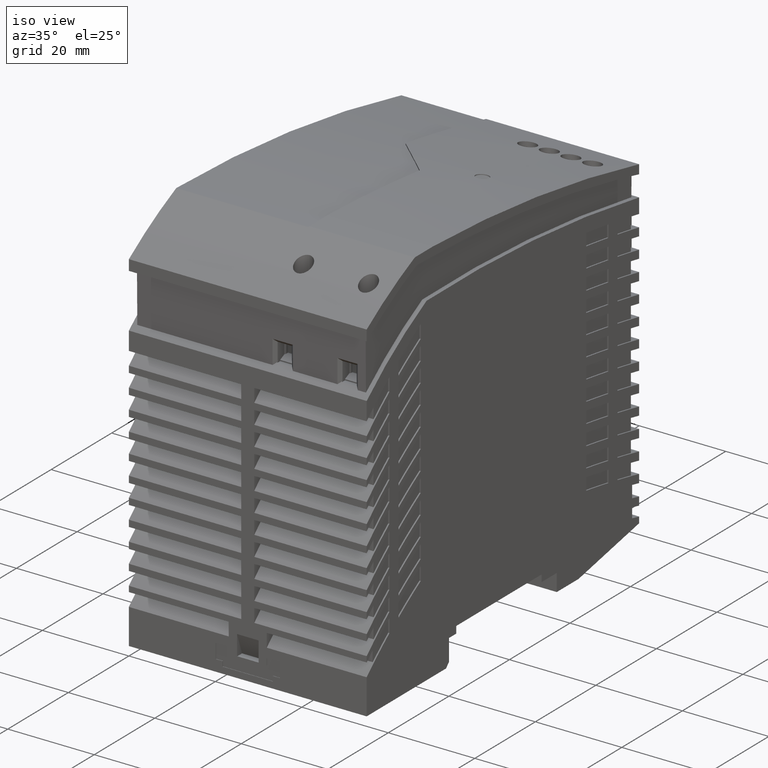
[diagram: clean part render]
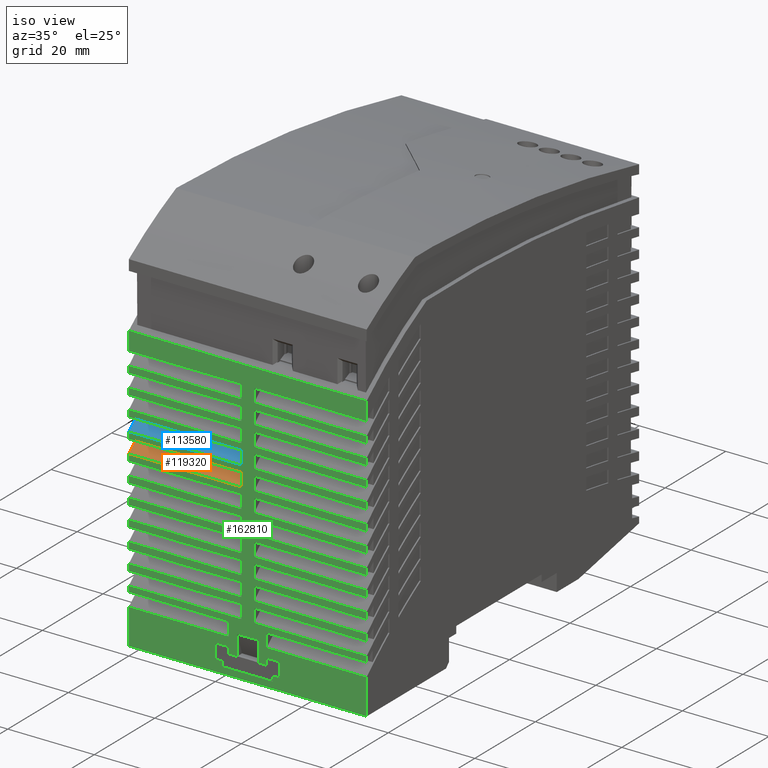
[diagram: same view with three faces highlighted in distinct colors, each labeled with its STEP entity id]
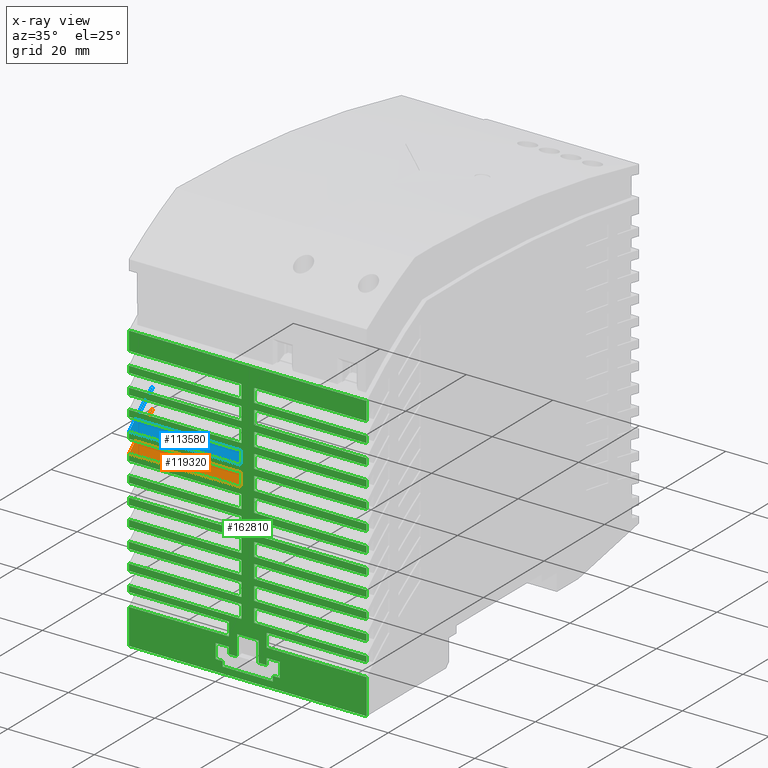
[diagram: x-ray of the same camera — body ghosted, the three highlighted faces saturated]
A machine part, iso view with three faces highlighted in distinct colors.
The next image is the same camera in x-ray (body ghosted, the three faces saturated) — at least one of them is partly hidden behind the body in this view.
Their STEP definitions:

[orange] entity #119320 — the highlighted cylindrical surface (partial cylindrical patch) has radius 111 mm, axis along (1, 0, 0).
#13440=CARTESIAN_POINT('',(30.4869845880642,-41.1590205851657,-54.));
#13450=DIRECTION('',(0.,0.,1.));
#13460=DIRECTION('',(0.,1.,0.));
#13470=AXIS2_PLACEMENT_3D('',#13440,#13450,#13460);
#13480=CIRCLE('',#13470,110.99999999997);
#20270=CARTESIAN_POINT('',(-37.4715236073769,46.6056714261642,-54.));
#20280=VERTEX_POINT('',#20270);
#20310=CARTESIAN_POINT('',(-45.0015236073532,40.2196322079583,-54.));
#20320=VERTEX_POINT('',#20310);
#20330=EDGE_CURVE('',#20280,#20320,#13480,.T.);
#118650=CARTESIAN_POINT('',(-42.301523607367,42.6433246963183,-53.7));
#118660=VERTEX_POINT('',#118650);
#118690=CARTESIAN_POINT('',(30.4869845880642,-41.1590205851657,-53.7));
#118700=DIRECTION('',(0.,0.,1.));
#118710=DIRECTION('',(0.,1.,0.));
#118720=AXIS2_PLACEMENT_3D('',#118690,#118700,#118710);
#118730=CIRCLE('',#118720,110.99999999997);
#118740=CARTESIAN_POINT('',(-37.4715236073769,46.6056714261642,-53.7));
#118750=VERTEX_POINT('',#118740);
#118760=EDGE_CURVE('',#118750,#118660,#118730,.T.);
#118940=CARTESIAN_POINT('',(30.4869845880642,-41.1590205851657,-53.7));
#118950=DIRECTION('',(0.,0.,1.));
#118960=DIRECTION('',(0.,1.,0.));
#118970=AXIS2_PLACEMENT_3D('',#118940,#118950,#118960);
#118980=CYLINDRICAL_SURFACE('',#118970,110.99999999997);
#118990=ORIENTED_EDGE('',*,*,#20330,.T.);
#119000=CARTESIAN_POINT('',(-37.4715236073769,46.6056714261642,-53.7));
#119010=DIRECTION('',(0.,0.,-1.));
#119020=VECTOR('',#119010,1.);
#119030=LINE('',#119000,#119020);
#119040=EDGE_CURVE('',#118750,#20280,#119030,.T.);
#119050=ORIENTED_EDGE('',*,*,#119040,.T.);
#119060=ORIENTED_EDGE('',*,*,#118760,.F.);
#119070=CARTESIAN_POINT('',(-42.301523607367,42.6433246963182,-28.));
#119080=DIRECTION('',(0.,0.,-1.));
#119090=VECTOR('',#119080,1.);
#119100=LINE('',#119070,#119090);
#119110=CARTESIAN_POINT('',(-42.301523607367,42.6433246963183,-28.));
#119120=VERTEX_POINT('',#119110);
#119130=EDGE_CURVE('',#119120,#118660,#119100,.T.);
#119140=ORIENTED_EDGE('',*,*,#119130,.T.);
#119150=CARTESIAN_POINT('',(30.4869845880642,-41.1590205851657,-28.));
#119160=DIRECTION('',(0.,0.,1.));
#119170=DIRECTION('',(0.,1.,0.));
#119180=AXIS2_PLACEMENT_3D('',#119150,#119160,#119170);
#119190=CIRCLE('',#119180,110.99999999997);
#119200=CARTESIAN_POINT('',(-45.0015236073532,40.2196322079583,-28.));
#119210=VERTEX_POINT('',#119200);
#119220=EDGE_CURVE('',#119120,#119210,#119190,.T.);
#119230=ORIENTED_EDGE('',*,*,#119220,.F.);
#119240=CARTESIAN_POINT('',(-45.0015236073532,40.2196322079583,-25.));
#119250=DIRECTION('',(0.,0.,1.));
#119260=VECTOR('',#119250,1.);
#119270=LINE('',#119240,#119260);
#119280=EDGE_CURVE('',#20320,#119210,#119270,.T.);
#119290=ORIENTED_EDGE('',*,*,#119280,.T.);
#119300=EDGE_LOOP('',(#119290,#119230,#119140,#119060,#119050,#118990));
#119310=FACE_OUTER_BOUND('',#119300,.T.);
#119320=ADVANCED_FACE('',(#119310),#118980,.T.);

[blue] entity #113580 — the highlighted cylindrical surface (partial cylindrical patch) has radius 111 mm, axis along (1, 0, 0).
#14160=CARTESIAN_POINT('',(30.4869845880638,-36.5590205851661,-54.));
#14170=DIRECTION('',(0.,0.,1.));
#14180=DIRECTION('',(0.,1.,0.));
#14190=AXIS2_PLACEMENT_3D('',#14160,#14170,#14180);
#14200=CIRCLE('',#14190,110.999999999971);
#20070=CARTESIAN_POINT('',(-37.4715236073769,51.2056714261642,-54.));
#20080=VERTEX_POINT('',#20070);
#20110=CARTESIAN_POINT('',(-45.0015236073532,44.8196322079584,-54.));
#20120=VERTEX_POINT('',#20110);
#20130=EDGE_CURVE('',#20080,#20120,#14200,.T.);
#111870=CARTESIAN_POINT('',(-42.3015236073671,47.2433246963184,-53.7));
#111880=VERTEX_POINT('',#111870);
#111910=CARTESIAN_POINT('',(30.4869845880638,-36.5590205851661,-53.7));
#111920=DIRECTION('',(0.,0.,1.));
#111930=DIRECTION('',(0.,1.,0.));
#111940=AXIS2_PLACEMENT_3D('',#111910,#111920,#111930);
#111950=CIRCLE('',#111940,110.999999999971);
#111960=CARTESIAN_POINT('',(-37.4715236073769,51.2056714261642,-53.7));
#111970=VERTEX_POINT('',#111960);
#111980=EDGE_CURVE('',#111970,#111880,#111950,.T.);
#113070=CARTESIAN_POINT('',(-37.4715236073769,51.2056714261643,-53.7));
#113080=DIRECTION('',(0.,0.,-1.));
#113090=VECTOR('',#113080,1.);
#113100=LINE('',#113070,#113090);
#113110=EDGE_CURVE('',#111970,#20080,#113100,.T.);
#113250=CARTESIAN_POINT('',(30.4869845880638,-36.5590205851661,-53.7));
#113260=DIRECTION('',(0.,0.,1.));
#113270=DIRECTION('',(0.,1.,0.));
#113280=AXIS2_PLACEMENT_3D('',#113250,#113260,#113270);
#113290=CYLINDRICAL_SURFACE('',#113280,110.999999999971);
#113300=ORIENTED_EDGE('',*,*,#20130,.T.);
#113310=ORIENTED_EDGE('',*,*,#113110,.T.);
#113320=ORIENTED_EDGE('',*,*,#111980,.F.);
#113330=CARTESIAN_POINT('',(-42.3015236073671,47.2433246963183,-28.));
#113340=DIRECTION('',(0.,0.,-1.));
#113350=VECTOR('',#113340,1.);
#113360=LINE('',#113330,#113350);
#113370=CARTESIAN_POINT('',(-42.3015236073671,47.2433246963184,-28.));
#113380=VERTEX_POINT('',#113370);
#113390=EDGE_CURVE('',#113380,#111880,#113360,.T.);
#113400=ORIENTED_EDGE('',*,*,#113390,.T.);
#113410=CARTESIAN_POINT('',(30.4869845880638,-36.5590205851661,-28.));
#113420=DIRECTION('',(0.,0.,1.));
#113430=DIRECTION('',(0.,1.,0.));
#113440=AXIS2_PLACEMENT_3D('',#113410,#113420,#113430);
#113450=CIRCLE('',#113440,110.999999999971);
#113460=CARTESIAN_POINT('',(-45.0015236073532,44.8196322079584,-28.));
#113470=VERTEX_POINT('',#113460);
#113480=EDGE_CURVE('',#113380,#113470,#113450,.T.);
#113490=ORIENTED_EDGE('',*,*,#113480,.F.);
#113500=CARTESIAN_POINT('',(-45.0015236073532,44.8196322079584,-25.));
#113510=DIRECTION('',(0.,0.,1.));
#113520=VECTOR('',#113510,1.);
#113530=LINE('',#113500,#113520);
#113540=EDGE_CURVE('',#20120,#113470,#113530,.T.);
#113550=ORIENTED_EDGE('',*,*,#113540,.T.);
#113560=EDGE_LOOP('',(#113550,#113490,#113400,#113320,#113310,#113300));
#113570=FACE_OUTER_BOUND('',#113560,.T.);
#113580=ADVANCED_FACE('',(#113570),#113290,.T.);

[green] entity #162810 — the highlighted planar face has unit normal (0, -1, 0).
#120=CARTESIAN_POINT('',(-45.0015236073532,1.52907227621138,-32.3));
#130=VERTEX_POINT('',#120);
#280=CARTESIAN_POINT('',(-45.0015236073532,1.52907227621138,-20.7));
#290=VERTEX_POINT('',#280);
#320=CARTESIAN_POINT('',(-45.0015236073671,1.52907227621138,0.));
#330=DIRECTION('',(0.,0.,1.));
#340=VECTOR('',#330,1.);
#350=LINE('',#320,#340);
#360=EDGE_CURVE('',#130,#290,#350,.T.);
#2010=CARTESIAN_POINT('',(-45.0015236073532,2.67907227621139,-19.1));
#2020=VERTEX_POINT('',#2010);
#2170=CARTESIAN_POINT('',(-45.0015236073532,6.02907227621138,-19.1));
#2180=VERTEX_POINT('',#2170);
#2210=CARTESIAN_POINT('',(-45.0015236073671,0.,-19.1));
#2220=DIRECTION('',(0.,1.,0.));
#2230=VECTOR('',#2220,1.);
#2240=LINE('',#2210,#2230);
#2250=EDGE_CURVE('',#2020,#2180,#2240,.T.);
#2470=CARTESIAN_POINT('',(-45.0015236073532,15.7196322079491,-25.));
#2480=VERTEX_POINT('',#2470);
#2660=CARTESIAN_POINT('',(-45.0015236073532,12.6196322079583,-25.));
#2670=VERTEX_POINT('',#2660);
#2700=CARTESIAN_POINT('',(-45.0015236073532,0.,-25.));
#2710=DIRECTION('',(0.,-1.,0.));
#2720=VECTOR('',#2710,1.);
#2730=LINE('',#2700,#2720);
#2740=EDGE_CURVE('',#2480,#2670,#2730,.T.);
#3440=CARTESIAN_POINT('',(-45.0015236073532,4.52907227621135,-30.9));
#3450=VERTEX_POINT('',#3440);
#3600=CARTESIAN_POINT('',(-45.0015236073532,6.02907227621138,-30.9));
#3610=VERTEX_POINT('',#3600);
#3640=CARTESIAN_POINT('',(-45.0015236073671,0.,-30.9));
#3650=DIRECTION('',(0.,1.,0.));
#3660=VECTOR('',#3650,1.);
#3670=LINE('',#3640,#3660);
#3680=EDGE_CURVE('',#3450,#3610,#3670,.T.);
#4940=CARTESIAN_POINT('',(-45.0015236073671,0.029072276211352,0.));
#4950=DIRECTION('',(0.,0.,1.));
#4960=VECTOR('',#4950,1.);
#4970=LINE('',#4940,#4960);
#4980=CARTESIAN_POINT('',(-45.0015236073532,0.029072276211352,-54.));
#4990=VERTEX_POINT('',#4980);
#5000=CARTESIAN_POINT('',(-45.0015236073532,0.029072276211352,1.));
#5010=VERTEX_POINT('',#5000);
#5020=EDGE_CURVE('',#4990,#5010,#4970,.T.);
#7470=CARTESIAN_POINT('',(-45.0015236073532,2.67907227621139,-20.7));
#7480=VERTEX_POINT('',#7470);
#7600=CARTESIAN_POINT('',(-45.0015236073671,2.67907227621139,0.));
#7610=DIRECTION('',(0.,0.,1.));
#7620=VECTOR('',#7610,1.);
#7630=LINE('',#7600,#7620);
#7640=EDGE_CURVE('',#7480,#2020,#7630,.T.);
#7870=CARTESIAN_POINT('',(-45.0015236073532,4.52907227621135,-24.));
#7880=VERTEX_POINT('',#7870);
#7910=CARTESIAN_POINT('',(-45.0015236073671,4.52907227621135,0.));
#7920=DIRECTION('',(0.,0.,1.));
#7930=VECTOR('',#7920,1.);
#7940=LINE('',#7910,#7930);
#7950=CARTESIAN_POINT('',(-45.0015236073532,4.52907227621135,-22.1));
#7960=VERTEX_POINT('',#7950);
#7970=EDGE_CURVE('',#7880,#7960,#7940,.T.);
#19270=CARTESIAN_POINT('',(-45.0015236073532,65.9624132898226,-54.));
#19280=VERTEX_POINT('',#19270);
#19310=CARTESIAN_POINT('',(-45.0015236073671,0.029072276211352,-54.));
#19320=DIRECTION('',(0.,-1.,0.));
#19330=VECTOR('',#19320,1.);
#19340=LINE('',#19310,#19330);
#19350=CARTESIAN_POINT('',(-45.0015236073532,61.7196322079584,-54.));
#19360=VERTEX_POINT('',#19350);
#19370=EDGE_CURVE('',#19280,#19360,#19340,.T.);
#19510=CARTESIAN_POINT('',(-45.0015236073532,58.6196322079584,-54.));
#19520=VERTEX_POINT('',#19510);
#19550=CARTESIAN_POINT('',(-45.0015236073532,57.1196322079585,-54.));
#19560=VERTEX_POINT('',#19550);
#19570=EDGE_CURVE('',#19520,#19560,#19340,.T.);
#19710=CARTESIAN_POINT('',(-45.0015236073532,54.0196322079584,-54.));
#19720=VERTEX_POINT('',#19710);
#19750=CARTESIAN_POINT('',(-45.0015236073532,52.5196322079585,-54.));
#19760=VERTEX_POINT('',#19750);
#19770=EDGE_CURVE('',#19720,#19760,#19340,.T.);
#19910=CARTESIAN_POINT('',(-45.0015236073532,49.4196322079584,-54.));
#19920=VERTEX_POINT('',#19910);
#19950=CARTESIAN_POINT('',(-45.0015236073532,47.9196322079584,-54.));
#19960=VERTEX_POINT('',#19950);
#19970=EDGE_CURVE('',#19920,#19960,#19340,.T.);
#20110=CARTESIAN_POINT('',(-45.0015236073532,44.8196322079584,-54.));
#20120=VERTEX_POINT('',#20110);
#20150=CARTESIAN_POINT('',(-45.0015236073532,43.3196322079583,-54.));
#20160=VERTEX_POINT('',#20150);
#20170=EDGE_CURVE('',#20120,#20160,#19340,.T.);
#20310=CARTESIAN_POINT('',(-45.0015236073532,40.2196322079583,-54.));
#20320=VERTEX_POINT('',#20310);
#20350=CARTESIAN_POINT('',(-45.0015236073532,38.7196322079491,-54.));
#20360=VERTEX_POINT('',#20350);
#20370=EDGE_CURVE('',#20320,#20360,#19340,.T.);
#20510=CARTESIAN_POINT('',(-45.0015236073532,35.6196322079584,-54.));
#20520=VERTEX_POINT('',#20510);
#20550=CARTESIAN_POINT('',(-45.0015236073532,34.1196322079584,-54.));
#20560=VERTEX_POINT('',#20550);
#20570=EDGE_CURVE('',#20520,#20560,#19340,.T.);
#20710=CARTESIAN_POINT('',(-45.0015236073532,31.0196322079585,-54.));
#20720=VERTEX_POINT('',#20710);
#20750=CARTESIAN_POINT('',(-45.0015236073532,29.5196322079585,-54.));
#20760=VERTEX_POINT('',#20750);
#20770=EDGE_CURVE('',#20720,#20760,#19340,.T.);
#20910=CARTESIAN_POINT('',(-45.0015236073532,26.4196322079584,-54.));
#20920=VERTEX_POINT('',#20910);
#20950=CARTESIAN_POINT('',(-45.0015236073532,24.9196322079585,-54.));
#20960=VERTEX_POINT('',#20950);
#20970=EDGE_CURVE('',#20920,#20960,#19340,.T.);
#21110=CARTESIAN_POINT('',(-45.0015236073532,21.8196322079584,-54.));
#21120=VERTEX_POINT('',#21110);
#21150=CARTESIAN_POINT('',(-45.0015236073532,20.3196322079585,-54.));
#21160=VERTEX_POINT('',#21150);
#21170=EDGE_CURVE('',#21120,#21160,#19340,.T.);
#21310=CARTESIAN_POINT('',(-45.0015236073532,17.2196322079584,-54.));
#21320=VERTEX_POINT('',#21310);
#21350=CARTESIAN_POINT('',(-45.0015236073532,15.7196322079492,-54.));
#21360=VERTEX_POINT('',#21350);
#21370=EDGE_CURVE('',#21320,#21360,#19340,.T.);
#21510=CARTESIAN_POINT('',(-45.0015236073532,12.6196322079583,-54.));
#21520=VERTEX_POINT('',#21510);
#21550=CARTESIAN_POINT('',(-45.0015236073532,11.3047001103734,-54.));
#21560=VERTEX_POINT('',#21550);
#21570=EDGE_CURVE('',#21520,#21560,#19340,.T.);
#21810=CARTESIAN_POINT('',(-45.0015236073672,8.20470011036055,-54.));
#21820=VERTEX_POINT('',#21810);
#21850=EDGE_CURVE('',#21820,#4990,#19340,.T.);
#28910=CARTESIAN_POINT('',(-45.0015236073532,9.22453163121141,-24.));
#28920=VERTEX_POINT('',#28910);
#28950=CARTESIAN_POINT('',(-45.0015236073671,0.,-24.));
#28960=DIRECTION('',(0.,1.,0.));
#28970=VECTOR('',#28960,1.);
#28980=LINE('',#28950,#28970);
#28990=EDGE_CURVE('',#7880,#28920,#28980,.T.);
#29740=CARTESIAN_POINT('',(-45.0015236073532,9.22453163117316,-29.));
#29750=VERTEX_POINT('',#29740);
#29780=CARTESIAN_POINT('',(-45.0015236073671,9.22453163121141,0.));
#29790=DIRECTION('',(0.,0.,1.));
#29800=VECTOR('',#29790,1.);
#29810=LINE('',#29780,#29800);
#29820=EDGE_CURVE('',#29750,#28920,#29810,.T.);
#30360=CARTESIAN_POINT('',(-45.0015236073532,2.67907227621139,-33.9));
#30370=VERTEX_POINT('',#30360);
#30520=CARTESIAN_POINT('',(-45.0015236073532,2.67907227621139,-32.3));
#30530=VERTEX_POINT('',#30520);
#30560=CARTESIAN_POINT('',(-45.0015236073671,2.67907227621139,0.));
#30570=DIRECTION('',(0.,0.,1.));
#30580=VECTOR('',#30570,1.);
#30590=LINE('',#30560,#30580);
#30600=EDGE_CURVE('',#30370,#30530,#30590,.T.);
#30770=CARTESIAN_POINT('',(-45.0015236073532,4.52907227621135,-29.));
#30780=VERTEX_POINT('',#30770);
#30810=CARTESIAN_POINT('',(-45.0015236073671,0.,-29.));
#30820=DIRECTION('',(0.,1.,0.));
#30830=VECTOR('',#30820,1.);
#30840=LINE('',#30810,#30830);
#30850=EDGE_CURVE('',#30780,#29750,#30840,.T.);
#40430=CARTESIAN_POINT('',(-45.0015236073532,65.9624132898226,1.));
#40440=VERTEX_POINT('',#40430);
#45460=CARTESIAN_POINT('',(-45.0015236073671,0.,1.));
#45470=DIRECTION('',(0.,1.,0.));
#45480=VECTOR('',#45470,1.);
#45490=LINE('',#45460,#45480);
#45500=CARTESIAN_POINT('',(-45.0015236073671,8.20470011037343,1.));
#45510=VERTEX_POINT('',#45500);
#45520=EDGE_CURVE('',#5010,#45510,#45490,.T.);
#45760=CARTESIAN_POINT('',(-45.0015236073672,11.3047001103647,1.));
#45770=VERTEX_POINT('',#45760);
#45800=CARTESIAN_POINT('',(-45.0015236073532,12.6196322079583,1.));
#45810=VERTEX_POINT('',#45800);
#45820=EDGE_CURVE('',#45770,#45810,#45490,.T.);
#46060=CARTESIAN_POINT('',(-45.0015236073532,15.7196322079491,1.));
#46070=VERTEX_POINT('',#46060);
#46100=CARTESIAN_POINT('',(-45.0015236073532,17.2196322079585,1.));
#46110=VERTEX_POINT('',#46100);
#46120=EDGE_CURVE('',#46070,#46110,#45490,.T.);
#46360=CARTESIAN_POINT('',(-45.0015236073532,20.3196322079585,1.));
#46370=VERTEX_POINT('',#46360);
#46400=CARTESIAN_POINT('',(-45.0015236073532,21.8196322079584,1.));
#46410=VERTEX_POINT('',#46400);
#46420=EDGE_CURVE('',#46370,#46410,#45490,.T.);
#46660=CARTESIAN_POINT('',(-45.0015236073532,24.9196322079585,1.));
#46670=VERTEX_POINT('',#46660);
#46700=CARTESIAN_POINT('',(-45.0015236073532,26.4196322079584,1.));
#46710=VERTEX_POINT('',#46700);
#46720=EDGE_CURVE('',#46670,#46710,#45490,.T.);
#46960=CARTESIAN_POINT('',(-45.0015236073532,29.5196322079585,1.));
#46970=VERTEX_POINT('',#46960);
#47000=CARTESIAN_POINT('',(-45.0015236073532,31.0196322079584,1.));
#47010=VERTEX_POINT('',#47000);
#47020=EDGE_CURVE('',#46970,#47010,#45490,.T.);
#47260=CARTESIAN_POINT('',(-45.0015236073532,34.1196322079584,1.));
#47270=VERTEX_POINT('',#47260);
#47300=CARTESIAN_POINT('',(-45.0015236073532,35.6196322079584,1.));
#47310=VERTEX_POINT('',#47300);
#47320=EDGE_CURVE('',#47270,#47310,#45490,.T.);
#47560=CARTESIAN_POINT('',(-45.0015236073532,38.7196322079491,1.));
#47570=VERTEX_POINT('',#47560);
#47600=CARTESIAN_POINT('',(-45.0015236073532,40.2196322079583,1.));
#47610=VERTEX_POINT('',#47600);
#47620=EDGE_CURVE('',#47570,#47610,#45490,.T.);
#47860=CARTESIAN_POINT('',(-45.0015236073532,43.3196322079584,1.));
#47870=VERTEX_POINT('',#47860);
#47900=CARTESIAN_POINT('',(-45.0015236073532,44.8196322079584,1.));
#47910=VERTEX_POINT('',#47900);
#47920=EDGE_CURVE('',#47870,#47910,#45490,.T.);
#48160=CARTESIAN_POINT('',(-45.0015236073532,47.9196322079455,1.));
#48170=VERTEX_POINT('',#48160);
#48200=CARTESIAN_POINT('',(-45.0015236073532,49.4196322079585,1.));
#48210=VERTEX_POINT('',#48200);
#48220=EDGE_CURVE('',#48170,#48210,#45490,.T.);
#48460=CARTESIAN_POINT('',(-45.0015236073532,52.5196322079585,1.));
#48470=VERTEX_POINT('',#48460);
#48500=CARTESIAN_POINT('',(-45.0015236073532,54.0196322079455,1.));
#48510=VERTEX_POINT('',#48500);
#48520=EDGE_CURVE('',#48470,#48510,#45490,.T.);
#48760=CARTESIAN_POINT('',(-45.0015236073532,57.1196322079585,1.));
#48770=VERTEX_POINT('',#48760);
#48800=CARTESIAN_POINT('',(-45.0015236073532,58.6196322079583,1.));
#48810=VERTEX_POINT('',#48800);
#48820=EDGE_CURVE('',#48770,#48810,#45490,.T.);
#49060=CARTESIAN_POINT('',(-45.0015236073532,61.7196322079586,1.));
#49070=VERTEX_POINT('',#49060);
#49100=EDGE_CURVE('',#49070,#40440,#45490,.T.);
#49770=CARTESIAN_POINT('',(-45.0015236073671,0.,-20.7));
#49780=DIRECTION('',(0.,1.,0.));
#49790=VECTOR('',#49780,1.);
#49800=LINE('',#49770,#49790);
#49810=EDGE_CURVE('',#290,#7480,#49800,.T.);
#51810=CARTESIAN_POINT('',(-45.0015236073532,6.02907227621138,-33.9));
#51820=VERTEX_POINT('',#51810);
#51850=CARTESIAN_POINT('',(-45.0015236073671,6.02907227621138,0.));
#51860=DIRECTION('',(0.,0.,-1.));
#51870=VECTOR('',#51860,1.);
#51880=LINE('',#51850,#51870);
#51890=EDGE_CURVE('',#3610,#51820,#51880,.T.);
#52090=CARTESIAN_POINT('',(-45.0015236073671,0.,-32.3));
#52100=DIRECTION('',(0.,-1.,0.));
#52110=VECTOR('',#52100,1.);
#52120=LINE('',#52090,#52110);
#52130=EDGE_CURVE('',#30530,#130,#52120,.T.);
#52360=CARTESIAN_POINT('',(-45.0015236073532,6.02907227621138,-22.1));
#52370=VERTEX_POINT('',#52360);
#52400=CARTESIAN_POINT('',(-45.0015236073671,6.02907227621138,0.));
#52410=DIRECTION('',(0.,0.,-1.));
#52420=VECTOR('',#52410,1.);
#52430=LINE('',#52400,#52420);
#52440=EDGE_CURVE('',#2180,#52370,#52430,.T.);
#53120=CARTESIAN_POINT('',(-45.0015236073671,0.,-33.9));
#53130=DIRECTION('',(0.,-1.,0.));
#53140=VECTOR('',#53130,1.);
#53150=LINE('',#53120,#53140);
#53160=EDGE_CURVE('',#51820,#30370,#53150,.T.);
#53730=CARTESIAN_POINT('',(-45.0015236073671,4.52907227621135,0.));
#53740=DIRECTION('',(0.,0.,1.));
#53750=VECTOR('',#53740,1.);
#53760=LINE('',#53730,#53750);
#53770=EDGE_CURVE('',#3450,#30780,#53760,.T.);
#53980=CARTESIAN_POINT('',(-45.0015236073671,0.,-22.1));
#53990=DIRECTION('',(0.,-1.,0.));
#54000=VECTOR('',#53990,1.);
#54010=LINE('',#53980,#54000);
#54020=EDGE_CURVE('',#52370,#7960,#54010,.T.);
#55530=CARTESIAN_POINT('',(-45.0015236073532,65.9624132898226,-54.));
#55540=DIRECTION('',(0.,0.,1.));
#55550=VECTOR('',#55540,1.);
#55560=LINE('',#55530,#55550);
#55570=EDGE_CURVE('',#19280,#40440,#55560,.T.);
#108670=CARTESIAN_POINT('',(-45.0015236073532,52.5196322079585,-25.));
#108680=DIRECTION('',(0.,0.,-1.));
#108690=VECTOR('',#108680,1.);
#108700=LINE('',#108670,#108690);
#108710=CARTESIAN_POINT('',(-45.0015236073532,52.5196322079585,-28.));
#108720=VERTEX_POINT('',#108710);
#108730=EDGE_CURVE('',#108720,#19760,#108700,.T.);
#109530=CARTESIAN_POINT('',(-45.0015236073532,49.4196322079584,-28.));
#109540=VERTEX_POINT('',#109530);
#109570=CARTESIAN_POINT('',(-45.0015236073532,49.4196322079585,-25.));
#109580=DIRECTION('',(0.,0.,1.));
#109590=VECTOR('',#109580,1.);
#109600=LINE('',#109570,#109590);
#109610=EDGE_CURVE('',#19920,#109540,#109600,.T.);
#112600=CARTESIAN_POINT('',(-45.0015236073532,47.9196322079585,-25.));
#112610=DIRECTION('',(0.,0.,-1.));
#112620=VECTOR('',#112610,1.);
#112630=LINE('',#112600,#112620);
#112640=CARTESIAN_POINT('',(-45.0015236073532,47.9196322079585,-28.));
#112650=VERTEX_POINT('',#112640);
#112660=EDGE_CURVE('',#112650,#19960,#112630,.T.);
#113460=CARTESIAN_POINT('',(-45.0015236073532,44.8196322079584,-28.));
#113470=VERTEX_POINT('',#113460);
#113500=CARTESIAN_POINT('',(-45.0015236073532,44.8196322079584,-25.));
#113510=DIRECTION('',(0.,0.,1.));
#113520=VECTOR('',#113510,1.);
#113530=LINE('',#113500,#113520);
#113540=EDGE_CURVE('',#20120,#113470,#113530,.T.);
#116100=CARTESIAN_POINT('',(-45.0015236073532,35.6196322079584,-28.));
#116110=VERTEX_POINT('',#116100);
#116140=CARTESIAN_POINT('',(-45.0015236073532,35.6196322079584,-25.));
#116150=DIRECTION('',(0.,0.,1.));
#116160=VECTOR('',#116150,1.);
#116170=LINE('',#116140,#116160);
#116180=EDGE_CURVE('',#20520,#116110,#116170,.T.);
#116640=CARTESIAN_POINT('',(-45.0015236073532,38.7196322079491,-25.));
#116650=DIRECTION('',(0.,0.,-1.));
#116660=VECTOR('',#116650,1.);
#116670=LINE('',#116640,#116660);
#116680=CARTESIAN_POINT('',(-45.0015236073532,38.7196322079491,-28.));
#116690=VERTEX_POINT('',#116680);
#116700=EDGE_CURVE('',#116690,#20360,#116670,.T.);
#119200=CARTESIAN_POINT('',(-45.0015236073532,40.2196322079583,-28.));
#119210=VERTEX_POINT('',#119200);
#119240=CARTESIAN_POINT('',(-45.0015236073532,40.2196322079583,-25.));
#119250=DIRECTION('',(0.,0.,1.));
#119260=VECTOR('',#119250,1.);
#119270=LINE('',#119240,#119260);
#119280=EDGE_CURVE('',#20320,#119210,#119270,.T.);
#119840=CARTESIAN_POINT('',(-45.0015236073532,43.3196322079584,-25.));
#119850=DIRECTION('',(0.,0.,-1.));
#119860=VECTOR('',#119850,1.);
#119870=LINE('',#119840,#119860);
#119880=CARTESIAN_POINT('',(-45.0015236073532,43.3196322079583,-28.));
#119890=VERTEX_POINT('',#119880);
#119900=EDGE_CURVE('',#119890,#20160,#119870,.T.);
#122880=CARTESIAN_POINT('',(-45.0015236073532,31.0196322079584,-28.));
#122890=VERTEX_POINT('',#122880);
#122920=CARTESIAN_POINT('',(-45.0015236073532,31.0196322079584,-25.));
#122930=DIRECTION('',(0.,0.,1.));
#122940=VECTOR('',#122930,1.);
#122950=LINE('',#122920,#122940);
#122960=EDGE_CURVE('',#20720,#122890,#122950,.T.);
#123420=CARTESIAN_POINT('',(-45.0015236073532,34.1196322079584,-25.));
#123430=DIRECTION('',(0.,0.,-1.));
#123440=VECTOR('',#123430,1.);
#123450=LINE('',#123420,#123440);
#123460=CARTESIAN_POINT('',(-45.0015236073532,34.1196322079584,-28.));
#123470=VERTEX_POINT('',#123460);
#123480=EDGE_CURVE('',#123470,#20560,#123450,.T.);
#125980=CARTESIAN_POINT('',(-45.0015236073532,12.6196322079583,-28.));
#125990=VERTEX_POINT('',#125980);
#126020=CARTESIAN_POINT('',(-45.0015236073532,12.6196322079583,-25.));
#126030=DIRECTION('',(0.,0.,1.));
#126040=VECTOR('',#126030,1.);
#126050=LINE('',#126020,#126040);
#126060=EDGE_CURVE('',#21520,#125990,#126050,.T.);
#126620=CARTESIAN_POINT('',(-45.0015236073532,15.7196322079491,-25.));
#126630=DIRECTION('',(0.,0.,-1.));
#126640=VECTOR('',#126630,1.);
#126650=LINE('',#126620,#126640);
#126660=CARTESIAN_POINT('',(-45.0015236073532,15.7196322079492,-28.));
#126670=VERTEX_POINT('',#126660);
#126680=EDGE_CURVE('',#126670,#21360,#126650,.T.);
#129210=CARTESIAN_POINT('',(-45.0015236073532,57.1196322079585,-25.));
#129220=DIRECTION('',(0.,0.,-1.));
#129230=VECTOR('',#129220,1.);
#129240=LINE('',#129210,#129230);
#129250=CARTESIAN_POINT('',(-45.0015236073532,57.1196322079585,-28.));
#129260=VERTEX_POINT('',#129250);
#129270=EDGE_CURVE('',#129260,#19560,#129240,.T.);
#130070=CARTESIAN_POINT('',(-45.0015236073532,54.0196322079584,-28.));
#130080=VERTEX_POINT('',#130070);
#130110=CARTESIAN_POINT('',(-45.0015236073532,54.0196322079584,-25.));
#130120=DIRECTION('',(0.,0.,1.));
#130130=VECTOR('',#130120,1.);
#130140=LINE('',#130110,#130130);
#130150=EDGE_CURVE('',#19720,#130080,#130140,.T.);
#134400=CARTESIAN_POINT('',(-45.0015236073532,26.4196322079584,-28.));
#134410=VERTEX_POINT('',#134400);
#134440=CARTESIAN_POINT('',(-45.0015236073532,26.4196322079584,-25.));
#134450=DIRECTION('',(0.,0.,1.));
#134460=VECTOR('',#134450,1.);
#134470=LINE('',#134440,#134460);
#134480=EDGE_CURVE('',#20920,#134410,#134470,.T.);
#134840=CARTESIAN_POINT('',(-45.0015236073532,29.5196322079585,-25.));
#134850=DIRECTION('',(0.,0.,-1.));
#134860=VECTOR('',#134850,1.);
#134870=LINE('',#134840,#134860);
#134880=CARTESIAN_POINT('',(-45.0015236073532,29.5196322079585,-28.));
#134890=VERTEX_POINT('',#134880);
#134900=EDGE_CURVE('',#134890,#20760,#134870,.T.);
#137640=CARTESIAN_POINT('',(-45.0015236073532,17.2196322079585,-28.));
#137650=VERTEX_POINT('',#137640);
#137680=CARTESIAN_POINT('',(-45.0015236073532,17.2196322079585,-25.));
#137690=DIRECTION('',(0.,0.,1.));
#137700=VECTOR('',#137690,1.);
#137710=LINE('',#137680,#137700);
#137720=EDGE_CURVE('',#21320,#137650,#137710,.T.);
#138130=CARTESIAN_POINT('',(-45.0015236073532,20.3196322079585,-25.));
#138140=DIRECTION('',(0.,0.,-1.));
#138150=VECTOR('',#138140,1.);
#138160=LINE('',#138130,#138150);
#138170=CARTESIAN_POINT('',(-45.0015236073532,20.3196322079585,-28.));
#138180=VERTEX_POINT('',#138170);
#138190=EDGE_CURVE('',#138180,#21160,#138160,.T.);
#140930=CARTESIAN_POINT('',(-45.0015236073532,24.9196322079585,-25.));
#140940=DIRECTION('',(0.,0.,-1.));
#140950=VECTOR('',#140940,1.);
#140960=LINE('',#140930,#140950);
#140970=CARTESIAN_POINT('',(-45.0015236073532,24.9196322079585,-28.));
#140980=VERTEX_POINT('',#140970);
#140990=EDGE_CURVE('',#140980,#20960,#140960,.T.);
#141790=CARTESIAN_POINT('',(-45.0015236073532,21.8196322079584,-28.));
#141800=VERTEX_POINT('',#141790);
#141830=CARTESIAN_POINT('',(-45.0015236073532,21.8196322079584,-25.));
#141840=DIRECTION('',(0.,0.,1.));
#141850=VECTOR('',#141840,1.);
#141860=LINE('',#141830,#141850);
#141870=EDGE_CURVE('',#21120,#141800,#141860,.T.);
#142720=CARTESIAN_POINT('',(-45.0015236073532,61.7196322079586,-25.));
#142730=DIRECTION('',(0.,0.,-1.));
#142740=VECTOR('',#142730,1.);
#142750=LINE('',#142720,#142740);
#142760=CARTESIAN_POINT('',(-45.0015236073532,61.7196322079586,-28.));
#142770=VERTEX_POINT('',#142760);
#142780=EDGE_CURVE('',#142770,#19360,#142750,.T.);
#143580=CARTESIAN_POINT('',(-45.0015236073532,58.6196322079583,-28.));
#143590=VERTEX_POINT('',#143580);
#143620=CARTESIAN_POINT('',(-45.0015236073532,58.6196322079583,-25.));
#143630=DIRECTION('',(0.,0.,1.));
#143640=VECTOR('',#143630,1.);
#143650=LINE('',#143620,#143640);
#143660=EDGE_CURVE('',#19520,#143590,#143650,.T.);
#145320=CARTESIAN_POINT('',(-45.0015236073532,0.,-28.));
#145330=DIRECTION('',(0.,-1.,0.));
#145340=VECTOR('',#145330,1.);
#145350=LINE('',#145320,#145340);
#145360=EDGE_CURVE('',#112650,#113470,#145350,.T.);
#145800=CARTESIAN_POINT('',(-45.0015236073532,0.,-28.));
#145810=DIRECTION('',(0.,1.,0.));
#145820=VECTOR('',#145810,1.);
#145830=LINE('',#145800,#145820);
#145840=EDGE_CURVE('',#130080,#129260,#145830,.T.);
#146090=CARTESIAN_POINT('',(-45.0015236073532,0.,-28.));
#146100=DIRECTION('',(0.,1.,0.));
#146110=VECTOR('',#146100,1.);
#146120=LINE('',#146090,#146110);
#146130=EDGE_CURVE('',#143590,#142770,#146120,.T.);
#146380=CARTESIAN_POINT('',(-45.0015236073532,0.,-28.));
#146390=DIRECTION('',(0.,1.,0.));
#146400=VECTOR('',#146390,1.);
#146410=LINE('',#146380,#146400);
#146420=EDGE_CURVE('',#109540,#108720,#146410,.T.);
#146620=CARTESIAN_POINT('',(-45.0015236073532,0.,-28.));
#146630=DIRECTION('',(0.,-1.,0.));
#146640=VECTOR('',#146630,1.);
#146650=LINE('',#146620,#146640);
#146660=EDGE_CURVE('',#116690,#116110,#146650,.T.);
#147340=CARTESIAN_POINT('',(-45.0015236073532,0.,-28.));
#147350=DIRECTION('',(0.,-1.,0.));
#147360=VECTOR('',#147350,1.);
#147370=LINE('',#147340,#147360);
#147380=EDGE_CURVE('',#134890,#134410,#147370,.T.);
#147580=CARTESIAN_POINT('',(-45.0015236073532,0.,-28.));
#147590=DIRECTION('',(0.,1.,0.));
#147600=VECTOR('',#147590,1.);
#147610=LINE('',#147580,#147600);
#147620=EDGE_CURVE('',#137650,#138180,#147610,.T.);
#147870=CARTESIAN_POINT('',(-45.0015236073532,0.,-28.));
#147880=DIRECTION('',(0.,-1.,0.));
#147890=VECTOR('',#147880,1.);
#147900=LINE('',#147870,#147890);
#147910=EDGE_CURVE('',#119890,#119210,#147900,.T.);
#148590=CARTESIAN_POINT('',(-45.0015236073532,0.,-28.));
#148600=DIRECTION('',(0.,1.,0.));
#148610=VECTOR('',#148600,1.);
#148620=LINE('',#148590,#148610);
#148630=EDGE_CURVE('',#141800,#140980,#148620,.T.);
#149020=CARTESIAN_POINT('',(-45.0015236073532,0.,-28.));
#149030=DIRECTION('',(0.,-1.,0.));
#149040=VECTOR('',#149030,1.);
#149050=LINE('',#149020,#149040);
#149060=EDGE_CURVE('',#123470,#122890,#149050,.T.);
#150120=CARTESIAN_POINT('',(-45.0015236073532,0.,-28.));
#150130=DIRECTION('',(0.,-1.,0.));
#150140=VECTOR('',#150130,1.);
#150150=LINE('',#150120,#150140);
#150160=EDGE_CURVE('',#126670,#125990,#150150,.T.);
#150660=CARTESIAN_POINT('',(-45.0015236073532,8.20470011037345,-30.9));
#150670=VERTEX_POINT('',#150660);
#150700=CARTESIAN_POINT('',(-45.0015236073532,8.20470011037345,-30.9));
#150710=DIRECTION('',(0.,0.,-1.));
#150720=VECTOR('',#150710,1.);
#150730=LINE('',#150700,#150720);
#150740=EDGE_CURVE('',#150670,#21820,#150730,.T.);
#151050=CARTESIAN_POINT('',(-45.0015236073532,11.3047001103734,-30.9));
#151060=VERTEX_POINT('',#151050);
#151090=CARTESIAN_POINT('',(-45.0015236073532,0.,-30.9));
#151100=DIRECTION('',(0.,-1.,0.));
#151110=VECTOR('',#151100,1.);
#151120=LINE('',#151090,#151110);
#151130=EDGE_CURVE('',#151060,#150670,#151120,.T.);
#151850=CARTESIAN_POINT('',(-45.0015236073532,11.3047001103734,-30.9));
#151860=DIRECTION('',(0.,0.,1.));
#151870=VECTOR('',#151860,1.);
#151880=LINE('',#151850,#151870);
#151890=EDGE_CURVE('',#21560,#151060,#151880,.T.);
#152110=CARTESIAN_POINT('',(-45.0015236073532,38.7196322079491,-25.));
#152120=VERTEX_POINT('',#152110);
#152300=CARTESIAN_POINT('',(-45.0015236073532,35.6196322079584,-25.));
#152310=VERTEX_POINT('',#152300);
#152340=CARTESIAN_POINT('',(-45.0015236073532,0.,-25.));
#152350=DIRECTION('',(0.,1.,0.));
#152360=VECTOR('',#152350,1.);
#152370=LINE('',#152340,#152360);
#152380=EDGE_CURVE('',#152310,#152120,#152370,.T.);
#152860=CARTESIAN_POINT('',(-45.0015236073532,29.5196322079585,-25.));
#152870=VERTEX_POINT('',#152860);
#152900=EDGE_CURVE('',#46970,#152870,#134870,.T.);
#153070=CARTESIAN_POINT('',(-45.0015236073532,21.8196322079584,-25.));
#153080=VERTEX_POINT('',#153070);
#153090=EDGE_CURVE('',#153080,#46410,#141860,.T.);
#153590=CARTESIAN_POINT('',(-45.0015236073532,26.4196322079584,-25.));
#153600=VERTEX_POINT('',#153590);
#153610=EDGE_CURVE('',#153600,#46710,#134470,.T.);
#154630=CARTESIAN_POINT('',(-45.0015236073532,20.3196322079585,-25.));
#154640=VERTEX_POINT('',#154630);
#154820=CARTESIAN_POINT('',(-45.0015236073532,17.2196322079585,-25.));
#154830=VERTEX_POINT('',#154820);
#154860=CARTESIAN_POINT('',(-45.0015236073532,0.,-25.));
#154870=DIRECTION('',(0.,-1.,0.));
#154880=VECTOR('',#154870,1.);
#154890=LINE('',#154860,#154880);
#154900=EDGE_CURVE('',#154640,#154830,#154890,.T.);
#155070=EDGE_CURVE('',#2670,#45810,#126050,.T.);
#156210=EDGE_CURVE('',#46070,#2480,#126650,.T.);
#156900=CARTESIAN_POINT('',(-45.0015236073532,43.3196322079584,-25.));
#156910=VERTEX_POINT('',#156900);
#157000=CARTESIAN_POINT('',(-45.0015236073532,40.2196322079583,-25.));
#157010=VERTEX_POINT('',#157000);
#157040=CARTESIAN_POINT('',(-45.0015236073532,0.,-25.));
#157050=DIRECTION('',(0.,1.,0.));
#157060=VECTOR('',#157050,1.);
#157070=LINE('',#157040,#157060);
#157080=EDGE_CURVE('',#157010,#156910,#157070,.T.);
#157250=EDGE_CURVE('',#157010,#47610,#119270,.T.);
#158250=EDGE_CURVE('',#47870,#156910,#119870,.T.);
#158730=CARTESIAN_POINT('',(-45.0015236073532,57.1196322079585,-25.));
#158740=VERTEX_POINT('',#158730);
#158770=EDGE_CURVE('',#48770,#158740,#129240,.T.);
#158990=CARTESIAN_POINT('',(-45.0015236073532,24.9196322079585,-25.));
#159000=VERTEX_POINT('',#158990);
#159120=CARTESIAN_POINT('',(-45.0015236073532,0.,-25.));
#159130=DIRECTION('',(0.,1.,0.));
#159140=VECTOR('',#159130,1.);
#159150=LINE('',#159120,#159140);
#159160=EDGE_CURVE('',#153080,#159000,#159150,.T.);
#159330=EDGE_CURVE('',#154830,#46110,#137710,.T.);
#160240=EDGE_CURVE('',#46370,#154640,#138160,.T.);
#160660=EDGE_CURVE('',#46670,#159000,#140960,.T.);
#160780=CARTESIAN_POINT('',(-45.0015236073532,90.0290722762114,1.));
#160790=DIRECTION('',(-1.,0.,0.));
#160800=DIRECTION('',(0.,-1.,0.));
#160810=AXIS2_PLACEMENT_3D('',#160780,#160790,#160800);
#160820=PLANE('',#160810);
#160830=ORIENTED_EDGE('',*,*,#30850,.T.);
#160840=ORIENTED_EDGE('',*,*,#53770,.T.);
#160850=ORIENTED_EDGE('',*,*,#3680,.F.);
#160860=ORIENTED_EDGE('',*,*,#51890,.F.);
#160870=ORIENTED_EDGE('',*,*,#53160,.F.);
#160880=ORIENTED_EDGE('',*,*,#30600,.F.);
#160890=ORIENTED_EDGE('',*,*,#52130,.F.);
#160900=ORIENTED_EDGE('',*,*,#360,.F.);
#160910=ORIENTED_EDGE('',*,*,#49810,.F.);
#160920=ORIENTED_EDGE('',*,*,#7640,.F.);
#160930=ORIENTED_EDGE('',*,*,#2250,.F.);
#160940=ORIENTED_EDGE('',*,*,#52440,.F.);
#160950=ORIENTED_EDGE('',*,*,#54020,.F.);
#160960=ORIENTED_EDGE('',*,*,#7970,.T.);
#160970=ORIENTED_EDGE('',*,*,#28990,.F.);
#160980=ORIENTED_EDGE('',*,*,#29820,.T.);
#160990=EDGE_LOOP('',(#160980,#160970,#160960,#160950,#160940,#160930,
#160920,#160910,#160900,#160890,#160880,#160870,#160860,#160850,#160840,
#160830));
#161000=FACE_BOUND('',#160990,.T.);
#161010=CARTESIAN_POINT('',(-45.0015236073532,61.7196322079586,-25.));
#161020=VERTEX_POINT('',#161010);
#161030=EDGE_CURVE('',#49070,#161020,#142750,.T.);
#161040=ORIENTED_EDGE('',*,*,#161030,.F.);
#161050=CARTESIAN_POINT('',(-45.0015236073532,0.,-25.));
#161060=DIRECTION('',(0.,-1.,0.));
#161070=VECTOR('',#161060,1.);
#161080=LINE('',#161050,#161070);
#161090=CARTESIAN_POINT('',(-45.0015236073532,58.6196322079583,-25.));
#161100=VERTEX_POINT('',#161090);
#161110=EDGE_CURVE('',#161020,#161100,#161080,.T.);
#161120=ORIENTED_EDGE('',*,*,#161110,.F.);
#161130=EDGE_CURVE('',#161100,#48810,#143650,.T.);
#161140=ORIENTED_EDGE('',*,*,#161130,.F.);
#161150=ORIENTED_EDGE('',*,*,#48820,.T.);
#161160=ORIENTED_EDGE('',*,*,#158770,.F.);
#161170=CARTESIAN_POINT('',(-45.0015236073532,0.,-25.));
#161180=DIRECTION('',(0.,1.,0.));
#161190=VECTOR('',#161180,1.);
#161200=LINE('',#161170,#161190);
#161210=CARTESIAN_POINT('',(-45.0015236073532,54.0196322079584,-25.));
#161220=VERTEX_POINT('',#161210);
#161230=EDGE_CURVE('',#161220,#158740,#161200,.T.);
#161240=ORIENTED_EDGE('',*,*,#161230,.T.);
#161250=EDGE_CURVE('',#161220,#48510,#130140,.T.);
#161260=ORIENTED_EDGE('',*,*,#161250,.F.);
#161270=ORIENTED_EDGE('',*,*,#48520,.T.);
#161280=CARTESIAN_POINT('',(-45.0015236073532,52.5196322079585,-25.));
#161290=VERTEX_POINT('',#161280);
#161300=EDGE_CURVE('',#48470,#161290,#108700,.T.);
#161310=ORIENTED_EDGE('',*,*,#161300,.F.);
#161320=CARTESIAN_POINT('',(-45.0015236073532,0.,-25.));
#161330=DIRECTION('',(0.,-1.,0.));
#161340=VECTOR('',#161330,1.);
#161350=LINE('',#161320,#161340);
#161360=CARTESIAN_POINT('',(-45.0015236073532,49.4196322079585,-25.));
#161370=VERTEX_POINT('',#161360);
#161380=EDGE_CURVE('',#161290,#161370,#161350,.T.);
#161390=ORIENTED_EDGE('',*,*,#161380,.F.);
#161400=EDGE_CURVE('',#161370,#48210,#109600,.T.);
#161410=ORIENTED_EDGE('',*,*,#161400,.F.);
#161420=ORIENTED_EDGE('',*,*,#48220,.T.);
#161430=CARTESIAN_POINT('',(-45.0015236073532,47.9196322079585,-25.));
#161440=VERTEX_POINT('',#161430);
#161450=EDGE_CURVE('',#48170,#161440,#112630,.T.);
#161460=ORIENTED_EDGE('',*,*,#161450,.F.);
#161470=CARTESIAN_POINT('',(-45.0015236073532,0.,-25.));
#161480=DIRECTION('',(0.,1.,0.));
#161490=VECTOR('',#161480,1.);
#161500=LINE('',#161470,#161490);
#161510=CARTESIAN_POINT('',(-45.0015236073532,44.8196322079584,-25.));
#161520=VERTEX_POINT('',#161510);
#161530=EDGE_CURVE('',#161520,#161440,#161500,.T.);
#161540=ORIENTED_EDGE('',*,*,#161530,.T.);
#161550=EDGE_CURVE('',#161520,#47910,#113530,.T.);
#161560=ORIENTED_EDGE('',*,*,#161550,.F.);
#161570=ORIENTED_EDGE('',*,*,#47920,.T.);
#161580=ORIENTED_EDGE('',*,*,#158250,.F.);
#161590=ORIENTED_EDGE('',*,*,#157080,.T.);
#161600=ORIENTED_EDGE('',*,*,#157250,.F.);
#161610=ORIENTED_EDGE('',*,*,#47620,.T.);
#161620=EDGE_CURVE('',#47570,#152120,#116670,.T.);
#161630=ORIENTED_EDGE('',*,*,#161620,.F.);
#161640=ORIENTED_EDGE('',*,*,#152380,.T.);
#161650=EDGE_CURVE('',#152310,#47310,#116170,.T.);
#161660=ORIENTED_EDGE('',*,*,#161650,.F.);
#161670=ORIENTED_EDGE('',*,*,#47320,.T.);
#161680=CARTESIAN_POINT('',(-45.0015236073532,34.1196322079584,-25.));
#161690=VERTEX_POINT('',#161680);
#161700=EDGE_CURVE('',#47270,#161690,#123450,.T.);
#161710=ORIENTED_EDGE('',*,*,#161700,.F.);
#161720=CARTESIAN_POINT('',(-45.0015236073532,0.,-25.));
#161730=DIRECTION('',(0.,1.,0.));
#161740=VECTOR('',#161730,1.);
#161750=LINE('',#161720,#161740);
#161760=CARTESIAN_POINT('',(-45.0015236073532,31.0196322079584,-25.));
#161770=VERTEX_POINT('',#161760);
#161780=EDGE_CURVE('',#161770,#161690,#161750,.T.);
#161790=ORIENTED_EDGE('',*,*,#161780,.T.);
#161800=EDGE_CURVE('',#161770,#47010,#122950,.T.);
#161810=ORIENTED_EDGE('',*,*,#161800,.F.);
#161820=ORIENTED_EDGE('',*,*,#47020,.T.);
#161830=ORIENTED_EDGE('',*,*,#152900,.F.);
#161840=CARTESIAN_POINT('',(-45.0015236073532,0.,-25.));
#161850=DIRECTION('',(0.,-1.,0.));
#161860=VECTOR('',#161850,1.);
#161870=LINE('',#161840,#161860);
#161880=EDGE_CURVE('',#152870,#153600,#161870,.T.);
#161890=ORIENTED_EDGE('',*,*,#161880,.F.);
#161900=ORIENTED_EDGE('',*,*,#153610,.F.);
#161910=ORIENTED_EDGE('',*,*,#46720,.T.);
#161920=ORIENTED_EDGE('',*,*,#160660,.F.);
#161930=ORIENTED_EDGE('',*,*,#159160,.T.);
#161940=ORIENTED_EDGE('',*,*,#153090,.F.);
#161950=ORIENTED_EDGE('',*,*,#46420,.T.);
#161960=ORIENTED_EDGE('',*,*,#160240,.F.);
#161970=ORIENTED_EDGE('',*,*,#154900,.F.);
#161980=ORIENTED_EDGE('',*,*,#159330,.F.);
#161990=ORIENTED_EDGE('',*,*,#46120,.T.);
#162000=ORIENTED_EDGE('',*,*,#156210,.F.);
#162010=ORIENTED_EDGE('',*,*,#2740,.F.);
#162020=ORIENTED_EDGE('',*,*,#155070,.F.);
#162030=ORIENTED_EDGE('',*,*,#45820,.T.);
#162040=CARTESIAN_POINT('',(-45.0015236073532,11.3047001103734,-22.1));
#162050=DIRECTION('',(0.,0.,-1.));
#162060=VECTOR('',#162050,1.);
#162070=LINE('',#162040,#162060);
#162080=CARTESIAN_POINT('',(-45.0015236073532,11.3047001103647,-22.1));
#162090=VERTEX_POINT('',#162080);
#162100=EDGE_CURVE('',#45770,#162090,#162070,.T.);
#162110=ORIENTED_EDGE('',*,*,#162100,.F.);
#162120=CARTESIAN_POINT('',(-45.0015236073532,0.,-22.1));
#162130=DIRECTION('',(0.,1.,0.));
#162140=VECTOR('',#162130,1.);
#162150=LINE('',#162120,#162140);
#162160=CARTESIAN_POINT('',(-45.0015236073532,8.20470011037343,-22.1));
#162170=VERTEX_POINT('',#162160);
#162180=EDGE_CURVE('',#162170,#162090,#162150,.T.);
#162190=ORIENTED_EDGE('',*,*,#162180,.T.);
#162200=CARTESIAN_POINT('',(-45.0015236073532,8.20470011037345,-22.1));
#162210=DIRECTION('',(0.,0.,1.));
#162220=VECTOR('',#162210,1.);
#162230=LINE('',#162200,#162220);
#162240=EDGE_CURVE('',#162170,#45510,#162230,.T.);
#162250=ORIENTED_EDGE('',*,*,#162240,.F.);
#162260=ORIENTED_EDGE('',*,*,#45520,.T.);
#162270=ORIENTED_EDGE('',*,*,#5020,.T.);
#162280=ORIENTED_EDGE('',*,*,#21850,.T.);
#162290=ORIENTED_EDGE('',*,*,#150740,.T.);
#162300=ORIENTED_EDGE('',*,*,#151130,.T.);
#162310=ORIENTED_EDGE('',*,*,#151890,.T.);
#162320=ORIENTED_EDGE('',*,*,#21570,.T.);
#162330=ORIENTED_EDGE('',*,*,#126060,.F.);
#162340=ORIENTED_EDGE('',*,*,#150160,.T.);
#162350=ORIENTED_EDGE('',*,*,#126680,.F.);
#162360=ORIENTED_EDGE('',*,*,#21370,.T.);
#162370=ORIENTED_EDGE('',*,*,#137720,.F.);
#162380=ORIENTED_EDGE('',*,*,#147620,.F.);
#162390=ORIENTED_EDGE('',*,*,#138190,.F.);
#162400=ORIENTED_EDGE('',*,*,#21170,.T.);
#162410=ORIENTED_EDGE('',*,*,#141870,.F.);
#162420=ORIENTED_EDGE('',*,*,#148630,.F.);
#162430=ORIENTED_EDGE('',*,*,#140990,.F.);
#162440=ORIENTED_EDGE('',*,*,#20970,.T.);
#162450=ORIENTED_EDGE('',*,*,#134480,.F.);
#162460=ORIENTED_EDGE('',*,*,#147380,.T.);
#162470=ORIENTED_EDGE('',*,*,#134900,.F.);
#162480=ORIENTED_EDGE('',*,*,#20770,.T.);
#162490=ORIENTED_EDGE('',*,*,#122960,.F.);
#162500=ORIENTED_EDGE('',*,*,#149060,.T.);
#162510=ORIENTED_EDGE('',*,*,#123480,.F.);
#162520=ORIENTED_EDGE('',*,*,#20570,.T.);
#162530=ORIENTED_EDGE('',*,*,#116180,.F.);
#162540=ORIENTED_EDGE('',*,*,#146660,.T.);
#162550=ORIENTED_EDGE('',*,*,#116700,.F.);
#162560=ORIENTED_EDGE('',*,*,#20370,.T.);
#162570=ORIENTED_EDGE('',*,*,#119280,.F.);
#162580=ORIENTED_EDGE('',*,*,#147910,.T.);
#162590=ORIENTED_EDGE('',*,*,#119900,.F.);
#162600=ORIENTED_EDGE('',*,*,#20170,.T.);
#162610=ORIENTED_EDGE('',*,*,#113540,.F.);
#162620=ORIENTED_EDGE('',*,*,#145360,.T.);
#162630=ORIENTED_EDGE('',*,*,#112660,.F.);
#162640=ORIENTED_EDGE('',*,*,#19970,.T.);
#162650=ORIENTED_EDGE('',*,*,#109610,.F.);
#162660=ORIENTED_EDGE('',*,*,#146420,.F.);
#162670=ORIENTED_EDGE('',*,*,#108730,.F.);
#162680=ORIENTED_EDGE('',*,*,#19770,.T.);
#162690=ORIENTED_EDGE('',*,*,#130150,.F.);
#162700=ORIENTED_EDGE('',*,*,#145840,.F.);
#162710=ORIENTED_EDGE('',*,*,#129270,.F.);
#162720=ORIENTED_EDGE('',*,*,#19570,.T.);
#162730=ORIENTED_EDGE('',*,*,#143660,.F.);
#162740=ORIENTED_EDGE('',*,*,#146130,.F.);
#162750=ORIENTED_EDGE('',*,*,#142780,.F.);
#162760=ORIENTED_EDGE('',*,*,#19370,.T.);
#162770=ORIENTED_EDGE('',*,*,#55570,.F.);
#162780=ORIENTED_EDGE('',*,*,#49100,.T.);
#162790=EDGE_LOOP('',(#162780,#162770,#162760,#162750,#162740,#162730,
#162720,#162710,#162700,#162690,#162680,#162670,#162660,#162650,#162640,
#162630,#162620,#162610,#162600,#162590,#162580,#162570,#162560,#162550,
#162540,#162530,#162520,#162510,#162500,#162490,#162480,#162470,#162460,
#162450,#162440,#162430,#162420,#162410,#162400,#162390,#162380,#162370,
#162360,#162350,#162340,#162330,#162320,#162310,#162300,#162290,#162280,
#162270,#162260,#162250,#162190,#162110,#162030,#162020,#162010,#162000,
#161990,#161980,#161970,#161960,#161950,#161940,#161930,#161920,#161910,
#161900,#161890,#161830,#161820,#161810,#161790,#161710,#161670,#161660,
#161640,#161630,#161610,#161600,#161590,#161580,#161570,#161560,#161540,
#161460,#161420,#161410,#161390,#161310,#161270,#161260,#161240,#161160,
#161150,#161140,#161120,#161040));
#162800=FACE_OUTER_BOUND('',#162790,.T.);
#162810=ADVANCED_FACE('',(#161000,#162800),#160820,.T.);